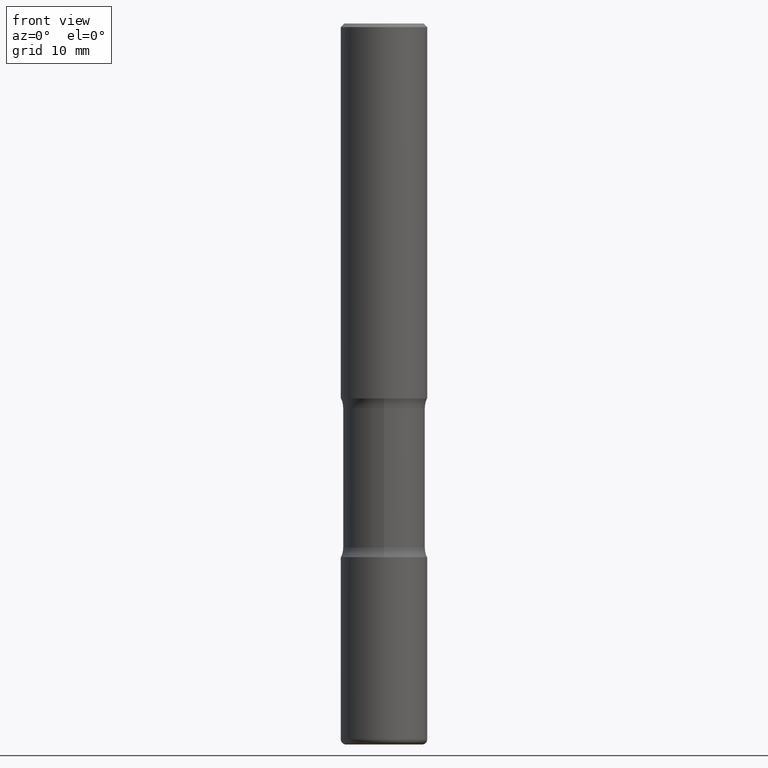
[diagram: clean part render]
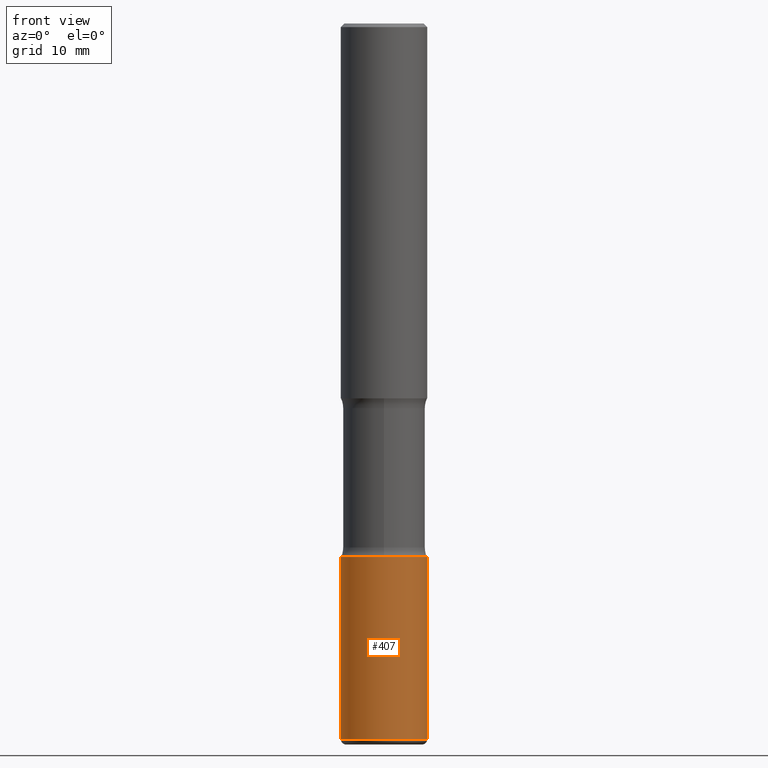
[diagram: same view with one face highlighted and labeled with its STEP entity id]
A machine part, front view. The second image highlights one B-rep face of the part: STEP entity #407.
In plain terms, the highlighted cylindrical surface (partial cylindrical patch) has radius 5.9995 mm, axis along (-0, 0, 1).
Its self-contained STEP definition (entity closure, byte-faithful):
#8 = CARTESIAN_POINT ( 'NONE',  ( -0.2362000000000002153, 1.678301941865358169E-15, -1.161852468318209878E-29 ) ) ;
#36 = CIRCLE ( 'NONE', #205, 0.2362000000000002431 ) ;
#45 = ORIENTED_EDGE ( 'NONE', *, *, #500, .T. ) ;
#64 = CYLINDRICAL_SURFACE ( 'NONE', #244, 0.2362000000000002153 ) ;
#79 = DIRECTION ( 'NONE',  ( -2.445468806185136877E-29, 3.491481338843145188E-15, 1.000000000000000000 ) ) ;
#83 = VERTEX_POINT ( 'NONE', #343 ) ;
#87 = EDGE_LOOP ( 'NONE', ( #533, #327, #45, #392 ) ) ;
#110 = VECTOR ( 'NONE', #79, 39.37007874015748143 ) ;
#113 = LINE ( 'NONE', #360, #332 ) ;
#130 = CARTESIAN_POINT ( 'NONE',  ( 7.124628819939777829E-29, -1.017208173258562247E-14, -2.913400000000000212 ) ) ;
#136 = VERTEX_POINT ( 'NONE', #417 ) ;
#145 = CIRCLE ( 'NONE', #502, 0.2362000000000001321 ) ;
#154 = DIRECTION ( 'NONE',  ( -2.445468806185136597E-29, 3.491481338843145583E-15, 1.000000000000000000 ) ) ;
#160 = VERTEX_POINT ( 'NONE', #275 ) ;
#171 = VERTEX_POINT ( 'NONE', #365 ) ;
#202 = CARTESIAN_POINT ( 'NONE',  ( 0.000000000000000000, 0.000000000000000000, 0.000000000000000000 ) ) ;
#205 = AXIS2_PLACEMENT_3D ( 'NONE', #541, #154, #322 ) ;
#212 = EDGE_CURVE ( 'NONE', #160, #171, #36, .T. ) ;
#228 = DIRECTION ( 'NONE',  ( -2.445468806185136597E-29, 3.491481338843145583E-15, 1.000000000000000000 ) ) ;
#244 = AXIS2_PLACEMENT_3D ( 'NONE', #202, #228, #404 ) ;
#263 = DIRECTION ( 'NONE',  ( -2.445468806185136597E-29, 3.491481338843145583E-15, 1.000000000000000000 ) ) ;
#271 = FACE_OUTER_BOUND ( 'NONE', #87, .T. ) ;
#274 = DIRECTION ( 'NONE',  ( -2.445468806185136877E-29, 3.491481338843145188E-15, 1.000000000000000000 ) ) ;
#275 = CARTESIAN_POINT ( 'NONE',  ( -0.2362000000000000766, -1.196291564899481365E-14, -3.907000000000000028 ) ) ;
#316 = EDGE_CURVE ( 'NONE', #160, #83, #431, .T. ) ;
#322 = DIRECTION ( 'NONE',  ( 1.000000000000000000, -6.982962677686265922E-15, 0.000000000000000000 ) ) ;
#327 = ORIENTED_EDGE ( 'NONE', *, *, #212, .T. ) ;
#332 = VECTOR ( 'NONE', #274, 39.37007874015748143 ) ;
#343 = CARTESIAN_POINT ( 'NONE',  ( -0.2362000000000001321, -1.022834771985753829E-14, -2.913400000000000212 ) ) ;
#350 = EDGE_CURVE ( 'NONE', #83, #136, #145, .T. ) ;
#360 = CARTESIAN_POINT ( 'NONE',  ( 0.2362000000000002153, -1.649375784469497708E-15, 1.151752954443001069E-29 ) ) ;
#365 = CARTESIAN_POINT ( 'NONE',  ( 0.2362000000000000766, -1.529059337532966657E-14, -3.907000000000000028 ) ) ;
#392 = ORIENTED_EDGE ( 'NONE', *, *, #350, .F. ) ;
#404 = DIRECTION ( 'NONE',  ( 1.000000000000000000, -6.982962677686266711E-15, 4.876176775795935793E-29 ) ) ;
#407 = ADVANCED_FACE ( 'NONE', ( #271 ), #64, .T. ) ;
#417 = CARTESIAN_POINT ( 'NONE',  ( 0.2362000000000001321, -1.182145751705511899E-14, -2.913400000000000212 ) ) ;
#431 = LINE ( 'NONE', #8, #110 ) ;
#480 = DIRECTION ( 'NONE',  ( 1.000000000000000000, -6.982962677686269077E-15, 0.000000000000000000 ) ) ;
#500 = EDGE_CURVE ( 'NONE', #171, #136, #113, .T. ) ;
#502 = AXIS2_PLACEMENT_3D ( 'NONE', #130, #263, #480 ) ;
#533 = ORIENTED_EDGE ( 'NONE', *, *, #316, .F. ) ;
#541 = CARTESIAN_POINT ( 'NONE',  ( 9.554446625765329033E-29, -1.364121759086017004E-14, -3.907000000000000028 ) ) ;